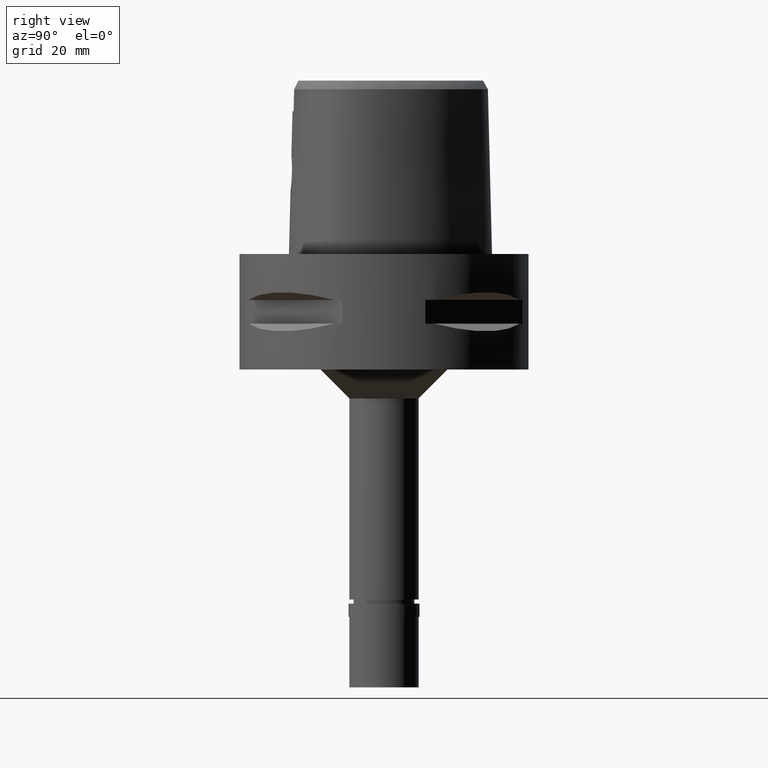
[diagram: clean part render]
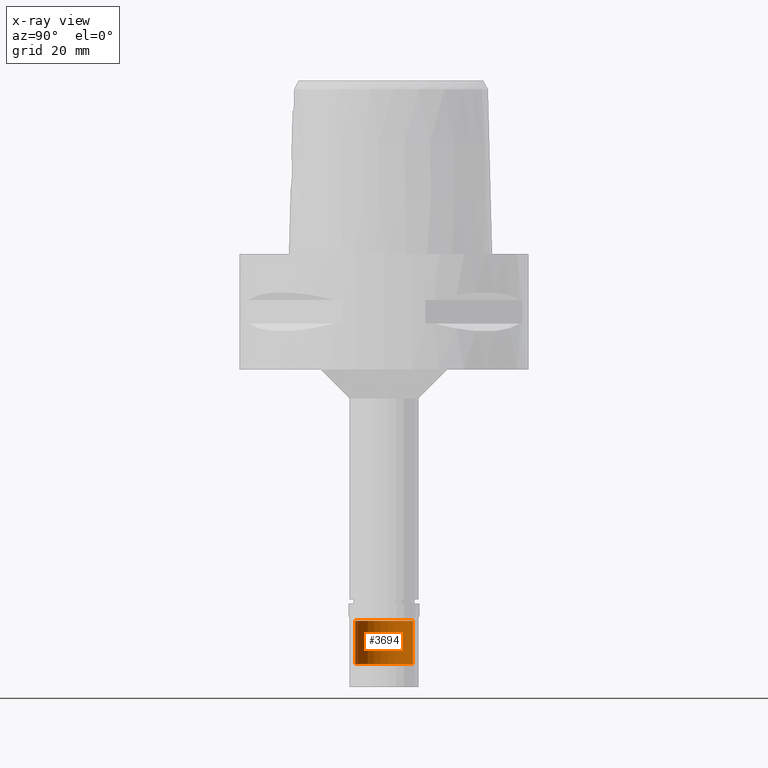
[diagram: x-ray — body ghosted, one internal face saturated and labeled with its STEP entity id]
A machine part, right view, then the same camera in x-ray: the body is ghosted and one INTERNAL B-rep face — a face not visible from any outside direction — is saturated and labeled: STEP entity #3694.
In plain terms, the highlighted cylindrical surface (edge-blend (fillet) strip) has radius 5 mm, axis along (0, 0, -1).
Its self-contained STEP definition (entity closure, byte-faithful):
#40 = EDGE_CURVE ( 'NONE', #2799, #886, #2007, .T. ) ;
#83 = CARTESIAN_POINT ( 'NONE',  ( 0.0000000000000000000, -5.000000000000000000, -71.00000000000000000 ) ) ;
#142 = LINE ( 'NONE', #916, #749 ) ;
#352 = DIRECTION ( 'NONE',  ( 0.0000000000000000000, 0.0000000000000000000, -1.000000000000000000 ) ) ;
#398 = EDGE_CURVE ( 'NONE', #1670, #2799, #142, .T. ) ;
#697 = LINE ( 'NONE', #4432, #3067 ) ;
#749 = VECTOR ( 'NONE', #3918, 1000.000000000000000 ) ;
#767 = CARTESIAN_POINT ( 'NONE',  ( 0.0000000000000000000, 1.268121760516999976E-14, -71.00000000000000000 ) ) ;
#886 = VERTEX_POINT ( 'NONE', #83 ) ;
#902 = AXIS2_PLACEMENT_3D ( 'NONE', #767, #4549, #2626 ) ;
#916 = CARTESIAN_POINT ( 'NONE',  ( 0.0000000000000000000, 5.000000000000000000, -63.50000000000000000 ) ) ;
#1028 = AXIS2_PLACEMENT_3D ( 'NONE', #3684, #352, #4704 ) ;
#1533 = DIRECTION ( 'NONE',  ( 0.0000000000000000000, 0.0000000000000000000, -1.000000000000000000 ) ) ;
#1589 = CARTESIAN_POINT ( 'NONE',  ( 0.0000000000000000000, 1.268121760516999976E-14, -63.50000000000000000 ) ) ;
#1670 = VERTEX_POINT ( 'NONE', #2643 ) ;
#1735 = AXIS2_PLACEMENT_3D ( 'NONE', #1589, #3056, #4600 ) ;
#2007 = CIRCLE ( 'NONE', #902, 5.000000000000000000 ) ;
#2401 = ORIENTED_EDGE ( 'NONE', *, *, #40, .T. ) ;
#2426 = ORIENTED_EDGE ( 'NONE', *, *, #398, .T. ) ;
#2444 = EDGE_CURVE ( 'NONE', #2564, #1670, #3455, .T. ) ;
#2510 = CYLINDRICAL_SURFACE ( 'NONE', #1028, 5.000000000000000000 ) ;
#2564 = VERTEX_POINT ( 'NONE', #2748 ) ;
#2626 = DIRECTION ( 'NONE',  ( 0.0000000000000000000, 1.000000000000000000, 0.0000000000000000000 ) ) ;
#2643 = CARTESIAN_POINT ( 'NONE',  ( 0.0000000000000000000, 5.000000000000000000, -63.50000000000000000 ) ) ;
#2748 = CARTESIAN_POINT ( 'NONE',  ( 0.0000000000000000000, -5.000000000000000000, -63.50000000000000000 ) ) ;
#2799 = VERTEX_POINT ( 'NONE', #4459 ) ;
#3056 = DIRECTION ( 'NONE',  ( 0.0000000000000000000, 0.0000000000000000000, -1.000000000000000000 ) ) ;
#3067 = VECTOR ( 'NONE', #1533, 1000.000000000000000 ) ;
#3359 = EDGE_LOOP ( 'NONE', ( #2401, #4053, #3593, #2426 ) ) ;
#3455 = CIRCLE ( 'NONE', #1735, 5.000000000000000000 ) ;
#3593 = ORIENTED_EDGE ( 'NONE', *, *, #2444, .T. ) ;
#3684 = CARTESIAN_POINT ( 'NONE',  ( 0.0000000000000000000, 1.268121760516999976E-14, 3.550000000000000266 ) ) ;
#3694 = ADVANCED_FACE ( 'NONE', ( #4367 ), #2510, .T. ) ;
#3918 = DIRECTION ( 'NONE',  ( 0.0000000000000000000, 0.0000000000000000000, -1.000000000000000000 ) ) ;
#4053 = ORIENTED_EDGE ( 'NONE', *, *, #4614, .F. ) ;
#4367 = FACE_OUTER_BOUND ( 'NONE', #3359, .T. ) ;
#4432 = CARTESIAN_POINT ( 'NONE',  ( 0.0000000000000000000, -5.000000000000000000, -63.50000000000000000 ) ) ;
#4459 = CARTESIAN_POINT ( 'NONE',  ( 0.0000000000000000000, 5.000000000000000000, -71.00000000000000000 ) ) ;
#4549 = DIRECTION ( 'NONE',  ( 0.0000000000000000000, 0.0000000000000000000, 1.000000000000000000 ) ) ;
#4600 = DIRECTION ( 'NONE',  ( 0.0000000000000000000, -1.000000000000000000, 0.0000000000000000000 ) ) ;
#4614 = EDGE_CURVE ( 'NONE', #2564, #886, #697, .T. ) ;
#4704 = DIRECTION ( 'NONE',  ( 0.0000000000000000000, -1.000000000000000000, 0.0000000000000000000 ) ) ;